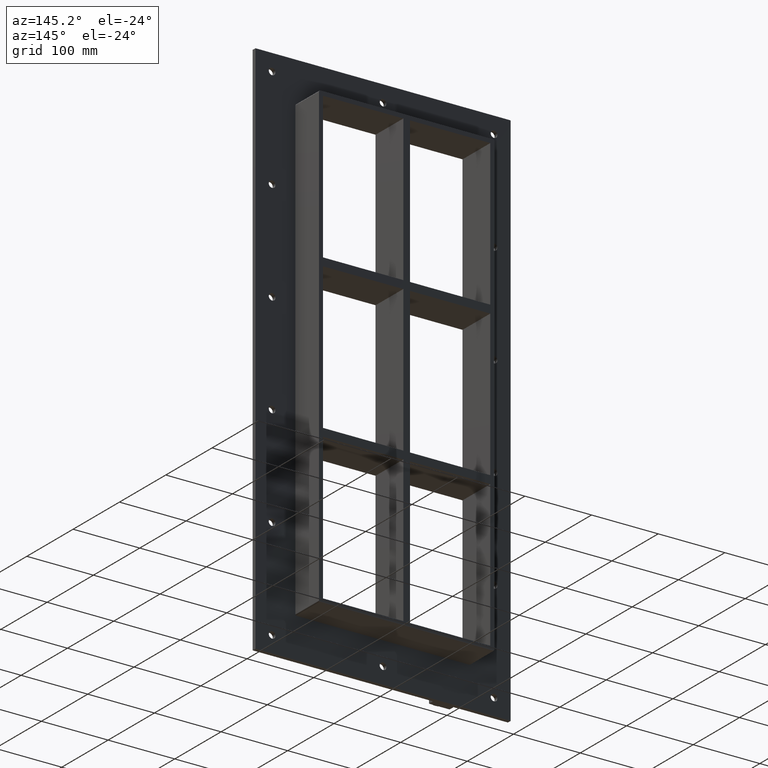
[diagram: clean part render]
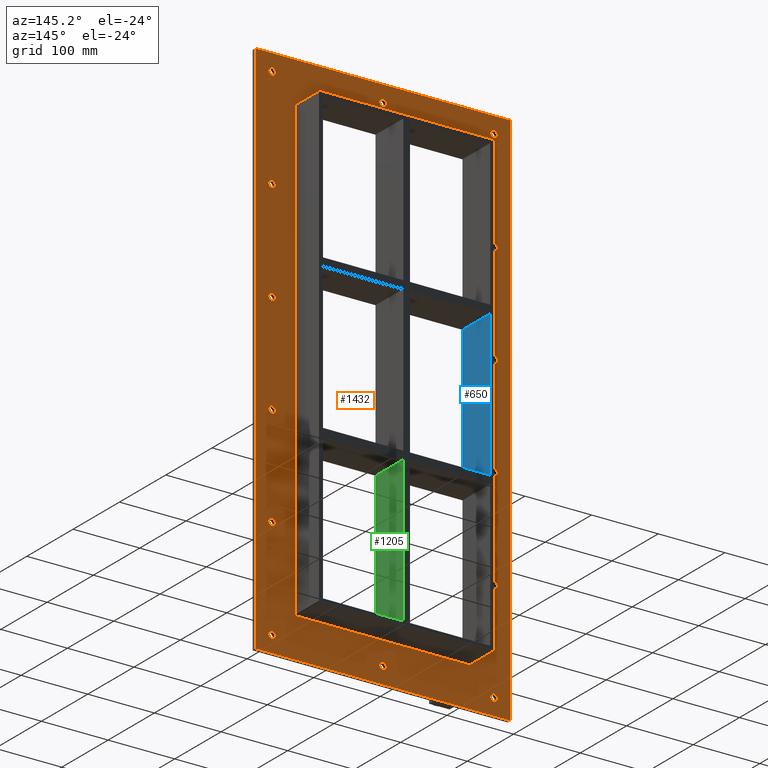
[diagram: same view with three faces highlighted in distinct colors, each labeled with its STEP entity id]
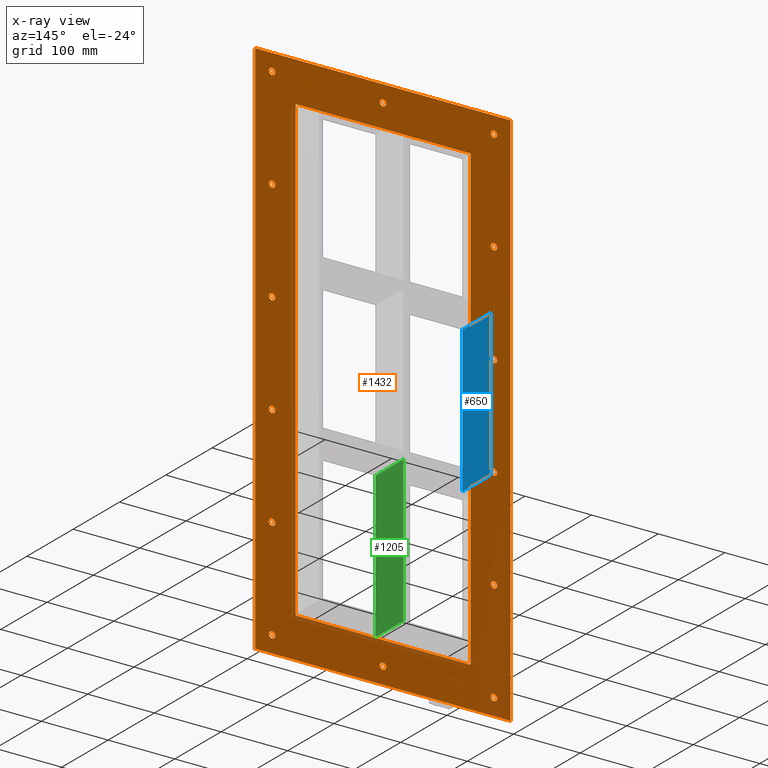
[diagram: x-ray of the same camera — body ghosted, the three highlighted faces saturated]
A machine part, auxiliary view with three faces highlighted in distinct colors.
The next image is the same camera in x-ray (body ghosted, the three faces saturated) — at least one of them is partly hidden behind the body in this view.
Their STEP definitions:

[orange] entity #1432 — the highlighted planar face has unit normal (0, 1, 0).
#73=CARTESIAN_POINT('',(-171.50000000000011,5.999999999999943,-380.0));
#74=VERTEX_POINT('',#73);
#75=CARTESIAN_POINT('',(-166.50000000000011,5.999999999999943,-380.0));
#76=DIRECTION('',(0.0,-1.0,0.0));
#77=DIRECTION('',(1.0,0.0,0.0));
#78=AXIS2_PLACEMENT_3D('',#75,#76,#77);
#79=CIRCLE('',#78,5.0);
#80=EDGE_CURVE('',#74,#74,#79,.T.);
#101=CARTESIAN_POINT('',(161.49999999999991,5.999999999999943,-228.00000000000006));
#102=VERTEX_POINT('',#101);
#103=CARTESIAN_POINT('',(166.49999999999991,5.999999999999943,-228.00000000000006));
#104=DIRECTION('',(0.0,-1.0,0.0));
#105=DIRECTION('',(1.0,0.0,0.0));
#106=AXIS2_PLACEMENT_3D('',#103,#104,#105);
#107=CIRCLE('',#106,5.0);
#108=EDGE_CURVE('',#102,#102,#107,.T.);
#129=CARTESIAN_POINT('',(-171.50000000000011,5.999999999999943,-228.00000000000006));
#130=VERTEX_POINT('',#129);
#131=CARTESIAN_POINT('',(-166.50000000000011,5.999999999999943,-228.00000000000006));
#132=DIRECTION('',(0.0,-1.0,0.0));
#133=DIRECTION('',(1.0,0.0,0.0));
#134=AXIS2_PLACEMENT_3D('',#131,#132,#133);
#135=CIRCLE('',#134,5.0);
#136=EDGE_CURVE('',#130,#130,#135,.T.);
#157=CARTESIAN_POINT('',(161.49999999999991,5.999999999999943,-76.0));
#158=VERTEX_POINT('',#157);
#159=CARTESIAN_POINT('',(166.49999999999991,5.999999999999943,-76.0));
#160=DIRECTION('',(0.0,-1.0,0.0));
#161=DIRECTION('',(1.0,0.0,0.0));
#162=AXIS2_PLACEMENT_3D('',#159,#160,#161);
#163=CIRCLE('',#162,5.0);
#164=EDGE_CURVE('',#158,#158,#163,.T.);
#185=CARTESIAN_POINT('',(-171.50000000000011,5.999999999999943,-76.0));
#186=VERTEX_POINT('',#185);
#187=CARTESIAN_POINT('',(-166.50000000000011,5.999999999999943,-76.0));
#188=DIRECTION('',(0.0,-1.0,0.0));
#189=DIRECTION('',(1.0,0.0,0.0));
#190=AXIS2_PLACEMENT_3D('',#187,#188,#189);
#191=CIRCLE('',#190,5.0);
#192=EDGE_CURVE('',#186,#186,#191,.T.);
#213=CARTESIAN_POINT('',(161.49999999999991,5.999999999999943,75.999999999999957));
#214=VERTEX_POINT('',#213);
#215=CARTESIAN_POINT('',(166.49999999999991,5.999999999999943,75.999999999999957));
#216=DIRECTION('',(0.0,-1.0,0.0));
#217=DIRECTION('',(1.0,0.0,0.0));
#218=AXIS2_PLACEMENT_3D('',#215,#216,#217);
#219=CIRCLE('',#218,5.0);
#220=EDGE_CURVE('',#214,#214,#219,.T.);
#241=CARTESIAN_POINT('',(-171.50000000000011,5.999999999999943,75.999999999999957));
#242=VERTEX_POINT('',#241);
#243=CARTESIAN_POINT('',(-166.50000000000011,5.999999999999943,75.999999999999957));
#244=DIRECTION('',(0.0,-1.0,0.0));
#245=DIRECTION('',(1.0,0.0,0.0));
#246=AXIS2_PLACEMENT_3D('',#243,#244,#245);
#247=CIRCLE('',#246,5.0);
#248=EDGE_CURVE('',#242,#242,#247,.T.);
#269=CARTESIAN_POINT('',(161.49999999999991,5.999999999999943,227.99999999999997));
#270=VERTEX_POINT('',#269);
#271=CARTESIAN_POINT('',(166.49999999999991,5.999999999999943,227.99999999999997));
#272=DIRECTION('',(0.0,-1.0,0.0));
#273=DIRECTION('',(1.0,0.0,0.0));
#274=AXIS2_PLACEMENT_3D('',#271,#272,#273);
#275=CIRCLE('',#274,5.0);
#276=EDGE_CURVE('',#270,#270,#275,.T.);
#297=CARTESIAN_POINT('',(-171.50000000000011,5.999999999999943,227.99999999999997));
#298=VERTEX_POINT('',#297);
#299=CARTESIAN_POINT('',(-166.50000000000011,5.999999999999943,227.99999999999997));
#300=DIRECTION('',(0.0,-1.0,0.0));
#301=DIRECTION('',(1.0,0.0,0.0));
#302=AXIS2_PLACEMENT_3D('',#299,#300,#301);
#303=CIRCLE('',#302,5.0);
#304=EDGE_CURVE('',#298,#298,#303,.T.);
#325=CARTESIAN_POINT('',(-5.000000000000107,5.999999999999943,380.0));
#326=VERTEX_POINT('',#325);
#327=CARTESIAN_POINT('',(-1.065814E-013,5.999999999999943,380.0));
#328=DIRECTION('',(0.0,-1.0,0.0));
#329=DIRECTION('',(1.0,0.0,0.0));
#330=AXIS2_PLACEMENT_3D('',#327,#328,#329);
#331=CIRCLE('',#330,5.0);
#332=EDGE_CURVE('',#326,#326,#331,.T.);
#353=CARTESIAN_POINT('',(-5.000000000000107,5.999999999999943,-380.0));
#354=VERTEX_POINT('',#353);
#355=CARTESIAN_POINT('',(-1.065814E-013,5.999999999999943,-380.0));
#356=DIRECTION('',(0.0,-1.0,0.0));
#357=DIRECTION('',(1.0,0.0,0.0));
#358=AXIS2_PLACEMENT_3D('',#355,#356,#357);
#359=CIRCLE('',#358,5.0);
#360=EDGE_CURVE('',#354,#354,#359,.T.);
#381=CARTESIAN_POINT('',(161.49999999999991,5.999999999999943,-380.0));
#382=VERTEX_POINT('',#381);
#383=CARTESIAN_POINT('',(166.49999999999991,5.999999999999943,-380.0));
#384=DIRECTION('',(0.0,-1.0,0.0));
#385=DIRECTION('',(1.0,0.0,0.0));
#386=AXIS2_PLACEMENT_3D('',#383,#384,#385);
#387=CIRCLE('',#386,5.0);
#388=EDGE_CURVE('',#382,#382,#387,.T.);
#409=CARTESIAN_POINT('',(-171.50000000000011,5.999999999999943,380.0));
#410=VERTEX_POINT('',#409);
#411=CARTESIAN_POINT('',(-166.50000000000011,5.999999999999943,380.0));
#412=DIRECTION('',(0.0,-1.0,0.0));
#413=DIRECTION('',(1.0,0.0,0.0));
#414=AXIS2_PLACEMENT_3D('',#411,#412,#413);
#415=CIRCLE('',#414,5.0);
#416=EDGE_CURVE('',#410,#410,#415,.T.);
#437=CARTESIAN_POINT('',(161.49999999999991,5.999999999999943,380.0));
#438=VERTEX_POINT('',#437);
#439=CARTESIAN_POINT('',(166.49999999999991,5.999999999999943,380.0));
#440=DIRECTION('',(0.0,-1.0,0.0));
#441=DIRECTION('',(1.0,0.0,0.0));
#442=AXIS2_PLACEMENT_3D('',#439,#440,#441);
#443=CIRCLE('',#442,5.0);
#444=EDGE_CURVE('',#438,#438,#443,.T.);
#1281=CARTESIAN_POINT('',(0.0,6.000000000000001,4.288271E-014));
#1282=DIRECTION('',(0.0,1.0,0.0));
#1283=DIRECTION('',(0.0,0.0,1.0));
#1284=AXIS2_PLACEMENT_3D('',#1281,#1282,#1283);
#1285=PLANE('',#1284);
#1286=CARTESIAN_POINT('',(-191.5,6.000000000000001,405.00000000000006));
#1287=VERTEX_POINT('',#1286);
#1288=CARTESIAN_POINT('',(191.5,6.000000000000001,405.00000000000006));
#1289=VERTEX_POINT('',#1288);
#1290=CARTESIAN_POINT('',(-191.5,6.000000000000001,405.00000000000006));
#1291=DIRECTION('',(1.0,0.0,0.0));
#1292=VECTOR('',#1291,383.0);
#1293=LINE('',#1290,#1292);
#1294=EDGE_CURVE('',#1287,#1289,#1293,.T.);
#1295=ORIENTED_EDGE('',*,*,#1294,.T.);
#1296=CARTESIAN_POINT('',(191.5,6.000000000000001,-404.99999999999994));
#1297=VERTEX_POINT('',#1296);
#1298=CARTESIAN_POINT('',(191.5,6.000000000000001,405.00000000000006));
#1299=DIRECTION('',(0.0,0.0,-1.0));
#1300=VECTOR('',#1299,810.0);
#1301=LINE('',#1298,#1300);
#1302=EDGE_CURVE('',#1289,#1297,#1301,.T.);
#1303=ORIENTED_EDGE('',*,*,#1302,.T.);
#1304=CARTESIAN_POINT('',(-191.5,6.000000000000001,-404.99999999999994));
#1305=VERTEX_POINT('',#1304);
#1306=CARTESIAN_POINT('',(191.5,6.000000000000001,-405.0));
#1307=DIRECTION('',(-1.0,0.0,0.0));
#1308=VECTOR('',#1307,383.0);
#1309=LINE('',#1306,#1308);
#1310=EDGE_CURVE('',#1297,#1305,#1309,.T.);
#1311=ORIENTED_EDGE('',*,*,#1310,.T.);
#1312=CARTESIAN_POINT('',(-191.5,6.000000000000001,-405.0));
#1313=DIRECTION('',(0.0,0.0,1.0));
#1314=VECTOR('',#1313,810.0);
#1315=LINE('',#1312,#1314);
#1316=EDGE_CURVE('',#1305,#1287,#1315,.T.);
#1317=ORIENTED_EDGE('',*,*,#1316,.T.);
#1318=EDGE_LOOP('',(#1295,#1303,#1311,#1317));
#1319=FACE_OUTER_BOUND('',#1318,.T.);
#1320=ORIENTED_EDGE('',*,*,#80,.T.);
#1321=EDGE_LOOP('',(#1320));
#1322=FACE_BOUND('',#1321,.T.);
#1323=ORIENTED_EDGE('',*,*,#108,.T.);
#1324=EDGE_LOOP('',(#1323));
#1325=FACE_BOUND('',#1324,.T.);
#1326=ORIENTED_EDGE('',*,*,#136,.T.);
#1327=EDGE_LOOP('',(#1326));
#1328=FACE_BOUND('',#1327,.T.);
#1329=ORIENTED_EDGE('',*,*,#164,.T.);
#1330=EDGE_LOOP('',(#1329));
#1331=FACE_BOUND('',#1330,.T.);
#1332=ORIENTED_EDGE('',*,*,#192,.T.);
#1333=EDGE_LOOP('',(#1332));
#1334=FACE_BOUND('',#1333,.T.);
#1335=ORIENTED_EDGE('',*,*,#220,.T.);
#1336=EDGE_LOOP('',(#1335));
#1337=FACE_BOUND('',#1336,.T.);
#1338=ORIENTED_EDGE('',*,*,#248,.T.);
#1339=EDGE_LOOP('',(#1338));
#1340=FACE_BOUND('',#1339,.T.);
#1341=ORIENTED_EDGE('',*,*,#276,.T.);
#1342=EDGE_LOOP('',(#1341));
#1343=FACE_BOUND('',#1342,.T.);
#1344=ORIENTED_EDGE('',*,*,#304,.T.);
#1345=EDGE_LOOP('',(#1344));
#1346=FACE_BOUND('',#1345,.T.);
#1347=ORIENTED_EDGE('',*,*,#332,.T.);
#1348=EDGE_LOOP('',(#1347));
#1349=FACE_BOUND('',#1348,.T.);
#1350=ORIENTED_EDGE('',*,*,#360,.T.);
#1351=EDGE_LOOP('',(#1350));
#1352=FACE_BOUND('',#1351,.T.);
#1353=ORIENTED_EDGE('',*,*,#388,.T.);
#1354=EDGE_LOOP('',(#1353));
#1355=FACE_BOUND('',#1354,.T.);
#1356=ORIENTED_EDGE('',*,*,#416,.T.);
#1357=EDGE_LOOP('',(#1356));
#1358=FACE_BOUND('',#1357,.T.);
#1359=ORIENTED_EDGE('',*,*,#444,.T.);
#1360=EDGE_LOOP('',(#1359));
#1361=FACE_BOUND('',#1360,.T.);
#1362=CARTESIAN_POINT('',(-131.5,6.000000000000001,343.00000000000006));
#1363=VERTEX_POINT('',#1362);
#1364=CARTESIAN_POINT('',(-129.5,6.000000000000001,345.00000000000006));
#1365=VERTEX_POINT('',#1364);
#1366=CARTESIAN_POINT('',(-129.5,6.000000000000001,343.00000000000006));
#1367=DIRECTION('',(0.0,1.0,0.0));
#1368=DIRECTION('',(-0.707106781186541,0.0,0.707106781186554));
#1369=AXIS2_PLACEMENT_3D('',#1366,#1367,#1368);
#1370=CIRCLE('',#1369,2.0);
#1371=EDGE_CURVE('',#1363,#1365,#1370,.T.);
#1372=ORIENTED_EDGE('',*,*,#1371,.F.);
#1373=CARTESIAN_POINT('',(-131.5,6.000000000000001,-343.00000000000006));
#1374=VERTEX_POINT('',#1373);
#1375=CARTESIAN_POINT('',(-131.5,6.000000000000001,-343.00000000000006));
#1376=DIRECTION('',(0.0,0.0,1.0));
#1377=VECTOR('',#1376,686.0);
#1378=LINE('',#1375,#1377);
#1379=EDGE_CURVE('',#1374,#1363,#1378,.T.);
#1380=ORIENTED_EDGE('',*,*,#1379,.F.);
#1381=CARTESIAN_POINT('',(-129.5,6.000000000000001,-345.00000000000006));
#1382=VERTEX_POINT('',#1381);
#1383=CARTESIAN_POINT('',(-129.5,6.000000000000001,-343.00000000000006));
#1384=DIRECTION('',(0.0,1.0,0.0));
#1385=DIRECTION('',(-0.707106781186541,0.0,-0.707106781186554));
#1386=AXIS2_PLACEMENT_3D('',#1383,#1384,#1385);
#1387=CIRCLE('',#1386,2.0);
#1388=EDGE_CURVE('',#1382,#1374,#1387,.T.);
#1389=ORIENTED_EDGE('',*,*,#1388,.F.);
#1390=CARTESIAN_POINT('',(129.50000000000003,6.000000000000001,-345.00000000000006));
#1391=VERTEX_POINT('',#1390);
#1392=CARTESIAN_POINT('',(129.50000000000003,6.000000000000001,-345.00000000000006));
#1393=DIRECTION('',(-1.0,0.0,0.0));
#1394=VECTOR('',#1393,259.0);
#1395=LINE('',#1392,#1394);
#1396=EDGE_CURVE('',#1391,#1382,#1395,.T.);
#1397=ORIENTED_EDGE('',*,*,#1396,.F.);
#1398=CARTESIAN_POINT('',(131.50000000000003,6.000000000000001,-343.00000000000006));
#1399=VERTEX_POINT('',#1398);
#1400=CARTESIAN_POINT('',(129.50000000000003,6.000000000000001,-343.00000000000006));
#1401=DIRECTION('',(0.0,1.0,0.0));
#1402=DIRECTION('',(0.707106781186541,0.0,-0.707106781186554));
#1403=AXIS2_PLACEMENT_3D('',#1400,#1401,#1402);
#1404=CIRCLE('',#1403,2.0);
#1405=EDGE_CURVE('',#1399,#1391,#1404,.T.);
#1406=ORIENTED_EDGE('',*,*,#1405,.F.);
#1407=CARTESIAN_POINT('',(131.50000000000003,6.000000000000001,343.00000000000006));
#1408=VERTEX_POINT('',#1407);
#1409=CARTESIAN_POINT('',(131.50000000000003,6.000000000000001,343.0));
#1410=DIRECTION('',(0.0,0.0,-1.0));
#1411=VECTOR('',#1410,686.0);
#1412=LINE('',#1409,#1411);
#1413=EDGE_CURVE('',#1408,#1399,#1412,.T.);
#1414=ORIENTED_EDGE('',*,*,#1413,.F.);
#1415=CARTESIAN_POINT('',(129.50000000000003,6.000000000000001,345.00000000000006));
#1416=VERTEX_POINT('',#1415);
#1417=CARTESIAN_POINT('',(129.50000000000003,6.000000000000001,343.00000000000006));
#1418=DIRECTION('',(0.0,1.0,0.0));
#1419=DIRECTION('',(0.707106781186541,0.0,0.707106781186554));
#1420=AXIS2_PLACEMENT_3D('',#1417,#1418,#1419);
#1421=CIRCLE('',#1420,2.0);
#1422=EDGE_CURVE('',#1416,#1408,#1421,.T.);
#1423=ORIENTED_EDGE('',*,*,#1422,.F.);
#1424=CARTESIAN_POINT('',(-129.5,6.000000000000001,345.00000000000006));
#1425=DIRECTION('',(1.0,0.0,0.0));
#1426=VECTOR('',#1425,259.0);
#1427=LINE('',#1424,#1426);
#1428=EDGE_CURVE('',#1365,#1416,#1427,.T.);
#1429=ORIENTED_EDGE('',*,*,#1428,.F.);
#1430=EDGE_LOOP('',(#1372,#1380,#1389,#1397,#1406,#1414,#1423,#1429));
#1431=FACE_BOUND('',#1430,.T.);
#1432=ADVANCED_FACE('',(#1319,#1322,#1325,#1328,#1331,#1334,#1337,#1340,#1343,#1346,#1349,#1352,#1355,#1358,#1361,#1431),#1285,.T.);

[blue] entity #650 — the highlighted planar face has unit normal (-1, 0, 0).
#595=CARTESIAN_POINT('',(-125.49999999999875,-3.0,108.9999999999884));
#596=VERTEX_POINT('',#595);
#603=CARTESIAN_POINT('',(-125.49999999999875,57.0,108.9999999999884));
#604=VERTEX_POINT('',#603);
#605=CARTESIAN_POINT('',(-125.5,57.000000000000007,108.99999999998839));
#606=DIRECTION('',(0.0,-1.0,0.0));
#607=VECTOR('',#606,60.000000000000007);
#608=LINE('',#605,#607);
#609=EDGE_CURVE('',#604,#596,#608,.T.);
#620=CARTESIAN_POINT('',(-125.5,0.0,-339.00000000000006));
#621=DIRECTION('',(-1.0,0.0,0.0));
#622=DIRECTION('',(0.0,0.0,1.0));
#623=AXIS2_PLACEMENT_3D('',#620,#621,#622);
#624=PLANE('',#623);
#625=ORIENTED_EDGE('',*,*,#609,.T.);
#626=CARTESIAN_POINT('',(-125.49999999999875,-3.0,-108.99999999999977));
#627=VERTEX_POINT('',#626);
#628=CARTESIAN_POINT('',(-125.5,-3.0,-108.99999999999977));
#629=DIRECTION('',(0.0,0.0,1.0));
#630=VECTOR('',#629,217.99999999998815);
#631=LINE('',#628,#630);
#632=EDGE_CURVE('',#627,#596,#631,.T.);
#633=ORIENTED_EDGE('',*,*,#632,.F.);
#634=CARTESIAN_POINT('',(-125.49999999999875,57.0,-108.99999999999977));
#635=VERTEX_POINT('',#634);
#636=CARTESIAN_POINT('',(-125.5,-3.0,-108.99999999999977));
#637=DIRECTION('',(0.0,1.0,0.0));
#638=VECTOR('',#637,60.000000000000007);
#639=LINE('',#636,#638);
#640=EDGE_CURVE('',#627,#635,#639,.T.);
#641=ORIENTED_EDGE('',*,*,#640,.T.);
#642=CARTESIAN_POINT('',(-125.5,57.0,108.99999999998838));
#643=DIRECTION('',(0.0,0.0,-1.0));
#644=VECTOR('',#643,217.99999999998815);
#645=LINE('',#642,#644);
#646=EDGE_CURVE('',#604,#635,#645,.T.);
#647=ORIENTED_EDGE('',*,*,#646,.F.);
#648=EDGE_LOOP('',(#625,#633,#641,#647));
#649=FACE_OUTER_BOUND('',#648,.T.);
#650=ADVANCED_FACE('',(#649),#624,.F.);

[green] entity #1205 — the highlighted planar face has unit normal (1, 0, 0).
#811=CARTESIAN_POINT('',(5.0,57.0,-121.0000000000113));
#812=VERTEX_POINT('',#811);
#813=CARTESIAN_POINT('',(5.0,-3.0,-121.0000000000113));
#814=VERTEX_POINT('',#813);
#815=CARTESIAN_POINT('',(5.0,57.0,-121.00000000001131));
#816=DIRECTION('',(0.0,-1.0,0.0));
#817=VECTOR('',#816,60.0);
#818=LINE('',#815,#817);
#819=EDGE_CURVE('',#812,#814,#818,.T.);
#1123=CARTESIAN_POINT('',(5.0,57.0,-338.9999999999817));
#1124=VERTEX_POINT('',#1123);
#1125=CARTESIAN_POINT('',(5.0,57.0,-121.00000000001131));
#1126=DIRECTION('',(0.0,0.0,-1.0));
#1127=VECTOR('',#1126,217.99999999997044);
#1128=LINE('',#1125,#1127);
#1129=EDGE_CURVE('',#812,#1124,#1128,.T.);
#1182=CARTESIAN_POINT('',(5.0,-3.0,339.00000000000006));
#1183=DIRECTION('',(1.0,0.0,0.0));
#1184=DIRECTION('',(0.0,0.0,-1.0));
#1185=AXIS2_PLACEMENT_3D('',#1182,#1183,#1184);
#1186=PLANE('',#1185);
#1187=ORIENTED_EDGE('',*,*,#819,.T.);
#1188=CARTESIAN_POINT('',(5.0,-3.0,-338.9999999999817));
#1189=VERTEX_POINT('',#1188);
#1190=CARTESIAN_POINT('',(5.0,-3.0,-121.00000000001131));
#1191=DIRECTION('',(0.0,0.0,-1.0));
#1192=VECTOR('',#1191,217.99999999997044);
#1193=LINE('',#1190,#1192);
#1194=EDGE_CURVE('',#814,#1189,#1193,.T.);
#1195=ORIENTED_EDGE('',*,*,#1194,.T.);
#1196=CARTESIAN_POINT('',(5.0,57.000000000000007,-339.00000000000006));
#1197=DIRECTION('',(0.0,-1.0,0.0));
#1198=VECTOR('',#1197,60.000000000000007);
#1199=LINE('',#1196,#1198);
#1200=EDGE_CURVE('',#1124,#1189,#1199,.T.);
#1201=ORIENTED_EDGE('',*,*,#1200,.F.);
#1202=ORIENTED_EDGE('',*,*,#1129,.F.);
#1203=EDGE_LOOP('',(#1187,#1195,#1201,#1202));
#1204=FACE_OUTER_BOUND('',#1203,.T.);
#1205=ADVANCED_FACE('',(#1204),#1186,.T.);